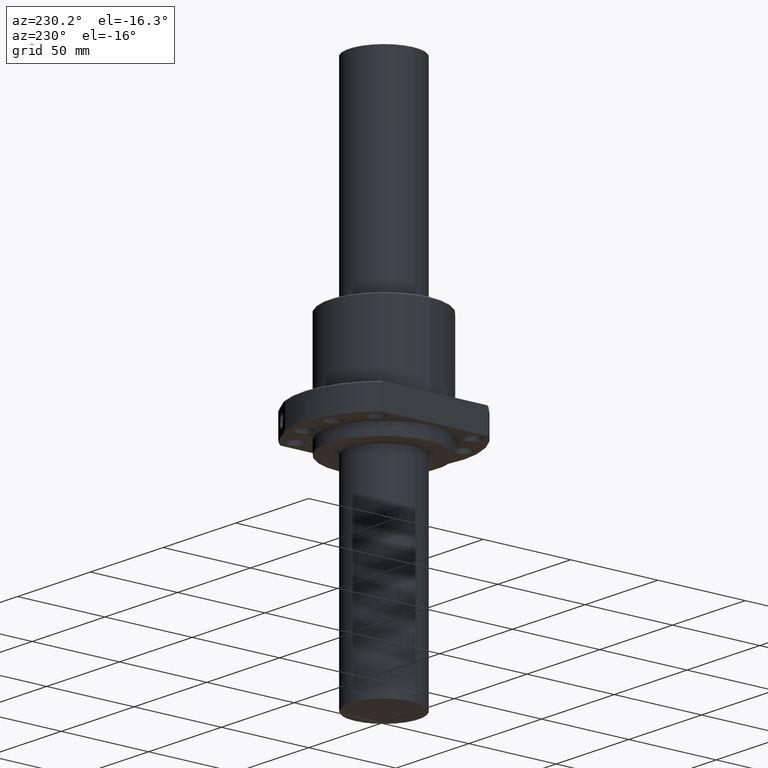
[diagram: clean part render]
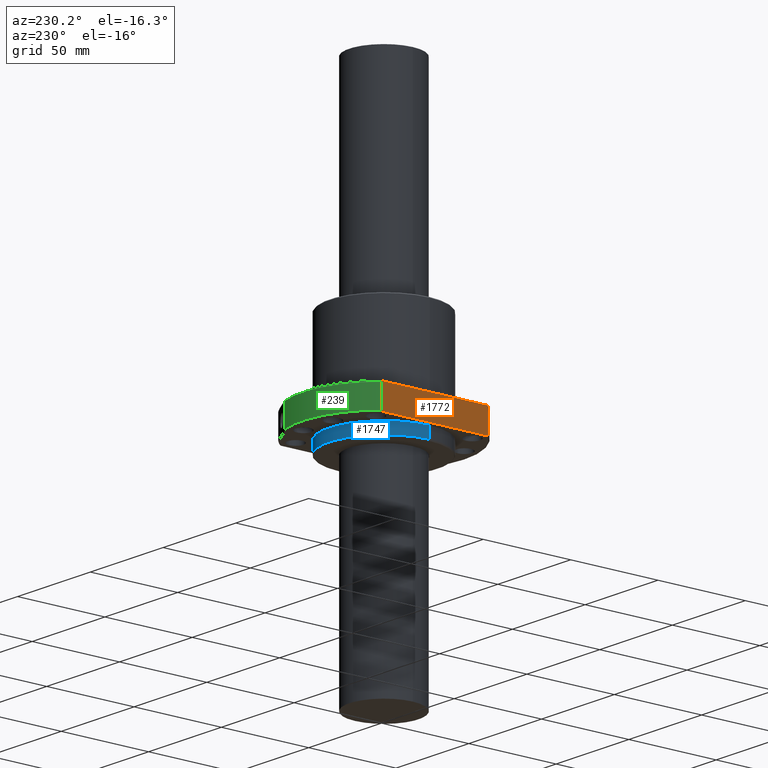
[diagram: same view with three faces highlighted in distinct colors, each labeled with its STEP entity id]
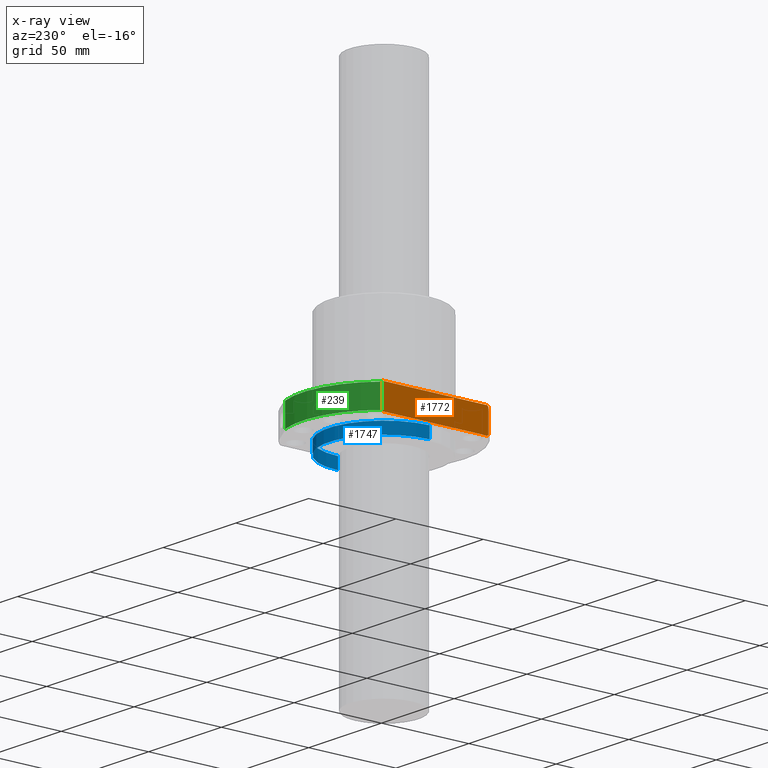
[diagram: x-ray of the same camera — body ghosted, the three highlighted faces saturated]
A machine part, auxiliary view with three faces highlighted in distinct colors.
The next image is the same camera in x-ray (body ghosted, the three faces saturated) — at least one of them is partly hidden behind the body in this view.
Their STEP definitions:

[orange] entity #1772 — the highlighted planar face has unit normal (-1, 0, 0).
#17 = VERTEX_POINT ( 'NONE', #1301 ) ;
#117 = ORIENTED_EDGE ( 'NONE', *, *, #343, .T. ) ;
#198 = VERTEX_POINT ( 'NONE', #1686 ) ;
#263 = EDGE_CURVE ( 'NONE', #500, #264, #1544, .T. ) ;
#264 = VERTEX_POINT ( 'NONE', #1536 ) ;
#296 = ORIENTED_EDGE ( 'NONE', *, *, #1985, .T. ) ;
#300 = DIRECTION ( 'NONE',  ( -0.0000000000000000000, -1.000000000000000000, -0.0000000000000000000 ) ) ;
#303 = CARTESIAN_POINT ( 'NONE',  ( 35.00000000000000000, 0.0000000000000000000, -6.999994000000000000 ) ) ;
#304 = LINE ( 'NONE', #303, #561 ) ;
#343 = EDGE_CURVE ( 'NONE', #198, #17, #1982, .T. ) ;
#490 = VERTEX_POINT ( 'NONE', #1408 ) ;
#500 = VERTEX_POINT ( 'NONE', #1407 ) ;
#542 = EDGE_CURVE ( 'NONE', #1710, #198, #1399, .T. ) ;
#561 = VECTOR ( 'NONE', #300, 1000.000000000000000 ) ;
#570 = EDGE_CURVE ( 'NONE', #17, #1715, #1337, .T. ) ;
#574 = DIRECTION ( 'NONE',  ( 0.0000000000000000000, 1.000000000000000000, 0.0000000000000000000 ) ) ;
#575 = DIRECTION ( 'NONE',  ( 1.000000000000000000, 0.0000000000000000000, 0.0000000000000000000 ) ) ;
#577 = CARTESIAN_POINT ( 'NONE',  ( 35.00000000000000000, -30.61453903000000000, -20.99999400000000100 ) ) ;
#579 = PLANE ( 'NONE',  #1047 ) ;
#593 = CARTESIAN_POINT ( 'NONE',  ( 35.00000000000000000, 29.84963505639657600, -6.999994000000000000 ) ) ;
#597 = CARTESIAN_POINT ( 'NONE',  ( 35.00000000000000000, 30.10516004608905000, -7.165805443558964400 ) ) ;
#599 = CARTESIAN_POINT ( 'NONE',  ( 35.00000000000000000, 30.36012365800162600, -7.332484963123183900 ) ) ;
#602 = CARTESIAN_POINT ( 'NONE',  ( 35.00000291111728500, 30.61454158731821100, -7.499990124499815300 ) ) ;
#622 = CARTESIAN_POINT ( 'NONE',  ( 35.00000291111728500, 30.61454158731821100, -7.499990124499815300 ) ) ;
#626 = CARTESIAN_POINT ( 'NONE',  ( 35.00000000000000000, -29.84963505248263600, -20.99999400253977600 ) ) ;
#629 = CARTESIAN_POINT ( 'NONE',  ( 35.00000000000000000, -29.84963505248263600, -20.99999400253977600 ) ) ;
#630 = CARTESIAN_POINT ( 'NONE',  ( 35.00000000000000000, -30.10516004322445500, -20.83418255829550600 ) ) ;
#631 = CARTESIAN_POINT ( 'NONE',  ( 35.00000000000000000, -30.36012365092897600, -20.66750304149837400 ) ) ;
#632 = CARTESIAN_POINT ( 'NONE',  ( 35.00000292501500400, -30.61454157125075100, -20.49999787561794300 ) ) ;
#766 = CARTESIAN_POINT ( 'NONE',  ( 35.00000292413608300, -30.61454157226240400, -7.499990124386556500 ) ) ;
#768 = CARTESIAN_POINT ( 'NONE',  ( 35.00000000000000000, -30.36012365177822800, -7.332484959058591700 ) ) ;
#769 = CARTESIAN_POINT ( 'NONE',  ( 34.99999999734155400, -30.10516004341644000, -7.165805443574334400 ) ) ;
#773 = CARTESIAN_POINT ( 'NONE',  ( 35.00000000000000000, -29.84963505305063300, -6.999993997828804400 ) ) ;
#810 = B_SPLINE_CURVE_WITH_KNOTS ( 'NONE', 3,
 ( #602, #599, #597, #593 ),
 .UNSPECIFIED., .F., .F.,
 ( 4, 4 ),
 ( 5.388822918106864500E-017, 0.0009138260975538394300 ),
 .UNSPECIFIED. ) ;
#897 = VERTEX_POINT ( 'NONE', #1162 ) ;
#986 = ORIENTED_EDGE ( 'NONE', *, *, #1764, .T. ) ;
#995 = B_SPLINE_CURVE_WITH_KNOTS ( 'NONE', 3,
 ( #632, #631, #630, #629 ),
 .UNSPECIFIED., .F., .F.,
 ( 4, 4 ),
 ( 5.485677294651095200E-017, 0.0009138260887348406200 ),
 .UNSPECIFIED. ) ;
#1033 = ORIENTED_EDGE ( 'NONE', *, *, #542, .T. ) ;
#1047 = AXIS2_PLACEMENT_3D ( 'NONE', #577, #575, #574 ) ;
#1081 = FACE_OUTER_BOUND ( 'NONE', #1531, .T. ) ;
#1090 = ORIENTED_EDGE ( 'NONE', *, *, #1705, .T. ) ;
#1162 = CARTESIAN_POINT ( 'NONE',  ( 35.00000000000000000, -29.84963505305063300, -6.999993997828804400 ) ) ;
#1301 = CARTESIAN_POINT ( 'NONE',  ( 35.00000290797419200, 30.61454159090332500, -20.49999787550559900 ) ) ;
#1333 = DIRECTION ( 'NONE',  ( 0.0000000000000000000, -0.0000000000000000000, 1.000000000000000000 ) ) ;
#1334 = CARTESIAN_POINT ( 'NONE',  ( 35.00000000000000000, 30.61455080104981300, -20.49999787550559900 ) ) ;
#1337 = LINE ( 'NONE', #1334, #1877 ) ;
#1380 = DIRECTION ( 'NONE',  ( 0.0000000000000000000, 1.000000000000000000, 0.0000000000000000000 ) ) ;
#1383 = CARTESIAN_POINT ( 'NONE',  ( 35.00000000000000000, 0.0000000000000000000, -20.99999400000000100 ) ) ;
#1399 = LINE ( 'NONE', #1383, #1901 ) ;
#1407 = CARTESIAN_POINT ( 'NONE',  ( 35.00000292413608300, -30.61454157226240400, -7.499990124386556500 ) ) ;
#1408 = CARTESIAN_POINT ( 'NONE',  ( 35.00000000000000000, 29.84963505639657600, -6.999994000000000000 ) ) ;
#1431 = ORIENTED_EDGE ( 'NONE', *, *, #263, .T. ) ;
#1503 = EDGE_CURVE ( 'NONE', #897, #500, #1714, .T. ) ;
#1518 = CARTESIAN_POINT ( 'NONE',  ( 35.00000290797419200, 30.61454159090332500, -20.49999787550559900 ) ) ;
#1520 = CARTESIAN_POINT ( 'NONE',  ( 35.00000000000000000, 30.36012366100958800, -20.66750303490416500 ) ) ;
#1521 = CARTESIAN_POINT ( 'NONE',  ( 35.00000000000000000, 30.10516004960869900, -20.83418255414414600 ) ) ;
#1523 = CARTESIAN_POINT ( 'NONE',  ( 35.00000000000000000, 29.84963505382145900, -20.99999400167100900 ) ) ;
#1531 = EDGE_LOOP ( 'NONE', ( #1645, #1431, #1090, #1033, #117, #1678, #986, #296 ) ) ;
#1536 = CARTESIAN_POINT ( 'NONE',  ( 35.00000292501500400, -30.61454157125075100, -20.49999787561794300 ) ) ;
#1538 = DIRECTION ( 'NONE',  ( -0.0000000000000000000, 0.0000000000000000000, -1.000000000000000000 ) ) ;
#1541 = CARTESIAN_POINT ( 'NONE',  ( 35.00000000000000000, -30.61455080104980600, -7.499990124386556500 ) ) ;
#1544 = LINE ( 'NONE', #1541, #1972 ) ;
#1645 = ORIENTED_EDGE ( 'NONE', *, *, #1503, .T. ) ;
#1678 = ORIENTED_EDGE ( 'NONE', *, *, #570, .T. ) ;
#1686 = CARTESIAN_POINT ( 'NONE',  ( 35.00000000000000000, 29.84963505382145900, -20.99999400167100900 ) ) ;
#1705 = EDGE_CURVE ( 'NONE', #264, #1710, #995, .T. ) ;
#1710 = VERTEX_POINT ( 'NONE', #626 ) ;
#1714 = B_SPLINE_CURVE_WITH_KNOTS ( 'NONE', 3,
 ( #773, #769, #768, #766 ),
 .UNSPECIFIED., .F., .F.,
 ( 4, 4 ),
 ( 3.983765469871819800E-012, 0.0009138260928889937700 ),
 .UNSPECIFIED. ) ;
#1715 = VERTEX_POINT ( 'NONE', #622 ) ;
#1764 = EDGE_CURVE ( 'NONE', #1715, #490, #810, .T. ) ;
#1772 = ADVANCED_FACE ( 'NONE', ( #1081 ), #579, .T. ) ;
#1877 = VECTOR ( 'NONE', #1333, 1000.000000000000000 ) ;
#1901 = VECTOR ( 'NONE', #1380, 1000.000000000000000 ) ;
#1972 = VECTOR ( 'NONE', #1538, 1000.000000000000000 ) ;
#1982 = B_SPLINE_CURVE_WITH_KNOTS ( 'NONE', 3,
 ( #1523, #1521, #1520, #1518 ),
 .UNSPECIFIED., .F., .F.,
 ( 4, 4 ),
 ( 3.069752213531450600E-012, 0.0009138261066848126400 ),
 .UNSPECIFIED. ) ;
#1985 = EDGE_CURVE ( 'NONE', #490, #897, #304, .T. ) ;

[blue] entity #1747 — the highlighted cylindrical surface (partial cylindrical patch) has radius 31.5 mm, axis along (0, 0, -1).
#73 = VERTEX_POINT ( 'NONE', #1110 ) ;
#178 = ORIENTED_EDGE ( 'NONE', *, *, #735, .T. ) ;
#344 = DIRECTION ( 'NONE',  ( 1.000000000000000000, 0.0000000000000000000, 0.0000000000000000000 ) ) ;
#346 = CIRCLE ( 'NONE', #634, 31.49999610000000400 ) ;
#347 = CARTESIAN_POINT ( 'NONE',  ( 0.0000000000000000000, 0.0000000000000000000, -0.5000000000000000000 ) ) ;
#349 = DIRECTION ( 'NONE',  ( 0.0000000000000000000, 0.0000000000000000000, 1.000000000000000000 ) ) ;
#424 = ORIENTED_EDGE ( 'NONE', *, *, #1444, .T. ) ;
#428 = DIRECTION ( 'NONE',  ( 0.0000000000000000000, -0.0000000000000000000, 1.000000000000000000 ) ) ;
#562 = EDGE_CURVE ( 'NONE', #73, #847, #1348, .T. ) ;
#616 = CARTESIAN_POINT ( 'NONE',  ( -31.49999610000000400, 3.857636939701911400E-015, -6.999994000000000000 ) ) ;
#618 = DIRECTION ( 'NONE',  ( 1.000000000000000000, 0.0000000000000000000, 0.0000000000000000000 ) ) ;
#619 = DIRECTION ( 'NONE',  ( 0.0000000000000000000, -0.0000000000000000000, 1.000000000000000000 ) ) ;
#628 = CARTESIAN_POINT ( 'NONE',  ( 0.0000000000000000000, 0.0000000000000000000, -6.999994000000000000 ) ) ;
#634 = AXIS2_PLACEMENT_3D ( 'NONE', #347, #349, #344 ) ;
#735 = EDGE_CURVE ( 'NONE', #1753, #1533, #1273, .T. ) ;
#753 = CARTESIAN_POINT ( 'NONE',  ( -31.49999610000000400, 0.0000000000000000000, -0.5000000000000000000 ) ) ;
#785 = VECTOR ( 'NONE', #428, 1000.000000000000000 ) ;
#836 = DIRECTION ( 'NONE',  ( 1.000000000000000000, 0.0000000000000000000, 0.0000000000000000000 ) ) ;
#837 = DIRECTION ( 'NONE',  ( 0.0000000000000000000, -0.0000000000000000000, 1.000000000000000000 ) ) ;
#839 = CARTESIAN_POINT ( 'NONE',  ( 0.0000000000000000000, 0.0000000000000000000, -6.999994000000000000 ) ) ;
#847 = VERTEX_POINT ( 'NONE', #1195 ) ;
#1048 = ORIENTED_EDGE ( 'NONE', *, *, #1954, .F. ) ;
#1110 = CARTESIAN_POINT ( 'NONE',  ( 31.49999610000000400, 0.0000000000000000000, -6.999994000000000000 ) ) ;
#1126 = AXIS2_PLACEMENT_3D ( 'NONE', #628, #619, #618 ) ;
#1140 = CYLINDRICAL_SURFACE ( 'NONE', #1126, 31.49999610000000400 ) ;
#1195 = CARTESIAN_POINT ( 'NONE',  ( 31.49999610000000400, 3.857636939701911400E-015, -0.5000000000000000000 ) ) ;
#1200 = FACE_OUTER_BOUND ( 'NONE', #1833, .T. ) ;
#1271 = CARTESIAN_POINT ( 'NONE',  ( -31.49999610000000400, 3.857636939701911400E-015, -6.999994000000000000 ) ) ;
#1273 = LINE ( 'NONE', #1271, #785 ) ;
#1346 = DIRECTION ( 'NONE',  ( 0.0000000000000000000, -0.0000000000000000000, 1.000000000000000000 ) ) ;
#1347 = CARTESIAN_POINT ( 'NONE',  ( 31.49999610000000400, 0.0000000000000000000, -6.999994000000000000 ) ) ;
#1348 = LINE ( 'NONE', #1347, #1879 ) ;
#1444 = EDGE_CURVE ( 'NONE', #73, #1753, #1974, .T. ) ;
#1524 = AXIS2_PLACEMENT_3D ( 'NONE', #839, #837, #836 ) ;
#1533 = VERTEX_POINT ( 'NONE', #753 ) ;
#1730 = ORIENTED_EDGE ( 'NONE', *, *, #562, .F. ) ;
#1747 = ADVANCED_FACE ( 'NONE', ( #1200 ), #1140, .T. ) ;
#1753 = VERTEX_POINT ( 'NONE', #616 ) ;
#1833 = EDGE_LOOP ( 'NONE', ( #424, #178, #1048, #1730 ) ) ;
#1879 = VECTOR ( 'NONE', #1346, 1000.000000000000000 ) ;
#1954 = EDGE_CURVE ( 'NONE', #847, #1533, #346, .T. ) ;
#1974 = CIRCLE ( 'NONE', #1524, 31.49999610000000400 ) ;

[green] entity #239 — the highlighted cylindrical surface (partial cylindrical patch) has radius 46.5 mm, axis along (0, 0, -1).
#17 = VERTEX_POINT ( 'NONE', #1301 ) ;
#239 = ADVANCED_FACE ( 'NONE', ( #1542 ), #999, .T. ) ;
#372 = ORIENTED_EDGE ( 'NONE', *, *, #1287, .F. ) ;
#461 = ORIENTED_EDGE ( 'NONE', *, *, #1853, .F. ) ;
#466 = ORIENTED_EDGE ( 'NONE', *, *, #570, .F. ) ;
#481 = DIRECTION ( 'NONE',  ( -1.000000000000000000, 0.0000000000000000000, 0.0000000000000000000 ) ) ;
#483 = DIRECTION ( 'NONE',  ( -0.0000000000000000000, -0.0000000000000000000, 1.000000000000000000 ) ) ;
#485 = CARTESIAN_POINT ( 'NONE',  ( 0.0000000000000000000, 0.0000000000000000000, -7.499993999999994700 ) ) ;
#570 = EDGE_CURVE ( 'NONE', #17, #1715, #1337, .T. ) ;
#622 = CARTESIAN_POINT ( 'NONE',  ( 35.00000291111728500, 30.61454158731821100, -7.499990124499815300 ) ) ;
#817 = AXIS2_PLACEMENT_3D ( 'NONE', #485, #483, #481 ) ;
#864 = VERTEX_POINT ( 'NONE', #1187 ) ;
#912 = DIRECTION ( 'NONE',  ( 1.000000000000000000, 8.881784197001252300E-016, 0.0000000000000000000 ) ) ;
#915 = DIRECTION ( 'NONE',  ( -0.0000000000000000000, 0.0000000000000000000, -1.000000000000000000 ) ) ;
#926 = CARTESIAN_POINT ( 'NONE',  ( 0.0000000000000000000, 0.0000000000000000000, -20.49999400000000800 ) ) ;
#973 = DIRECTION ( 'NONE',  ( -0.0000000000000000000, 0.0000000000000000000, -1.000000000000000000 ) ) ;
#976 = CARTESIAN_POINT ( 'NONE',  ( -15.16039527375529000, 43.95922128397587900, -7.499990124339051400 ) ) ;
#978 = LINE ( 'NONE', #976, #1662 ) ;
#999 = CYLINDRICAL_SURFACE ( 'NONE', #1914, 46.50000774999999500 ) ;
#1053 = VERTEX_POINT ( 'NONE', #1072 ) ;
#1072 = CARTESIAN_POINT ( 'NONE',  ( -15.16043181066709700, 43.95920458403310200, -7.499990124339051400 ) ) ;
#1187 = CARTESIAN_POINT ( 'NONE',  ( -15.16043181291919400, 43.95920458325284100, -20.49999787566431300 ) ) ;
#1230 = EDGE_CURVE ( 'NONE', #1053, #864, #978, .T. ) ;
#1287 = EDGE_CURVE ( 'NONE', #864, #17, #1711, .T. ) ;
#1301 = CARTESIAN_POINT ( 'NONE',  ( 35.00000290797419200, 30.61454159090332500, -20.49999787550559900 ) ) ;
#1333 = DIRECTION ( 'NONE',  ( 0.0000000000000000000, -0.0000000000000000000, 1.000000000000000000 ) ) ;
#1334 = CARTESIAN_POINT ( 'NONE',  ( 35.00000000000000000, 30.61455080104981300, -20.49999787550559900 ) ) ;
#1337 = LINE ( 'NONE', #1334, #1877 ) ;
#1542 = FACE_OUTER_BOUND ( 'NONE', #1641, .T. ) ;
#1566 = DIRECTION ( 'NONE',  ( 1.000000000000000000, 0.0000000000000000000, 0.0000000000000000000 ) ) ;
#1570 = DIRECTION ( 'NONE',  ( 0.0000000000000000000, -0.0000000000000000000, 1.000000000000000000 ) ) ;
#1572 = CARTESIAN_POINT ( 'NONE',  ( 0.0000000000000000000, 0.0000000000000000000, -20.49999400000000100 ) ) ;
#1578 = ORIENTED_EDGE ( 'NONE', *, *, #1230, .F. ) ;
#1584 = AXIS2_PLACEMENT_3D ( 'NONE', #926, #915, #912 ) ;
#1641 = EDGE_LOOP ( 'NONE', ( #372, #1578, #461, #466 ) ) ;
#1662 = VECTOR ( 'NONE', #973, 1000.000000000000000 ) ;
#1711 = CIRCLE ( 'NONE', #1584, 46.50000774999999500 ) ;
#1715 = VERTEX_POINT ( 'NONE', #622 ) ;
#1853 = EDGE_CURVE ( 'NONE', #1715, #1053, #1931, .T. ) ;
#1877 = VECTOR ( 'NONE', #1333, 1000.000000000000000 ) ;
#1914 = AXIS2_PLACEMENT_3D ( 'NONE', #1572, #1570, #1566 ) ;
#1931 = CIRCLE ( 'NONE', #817, 46.50000774999999500 ) ;